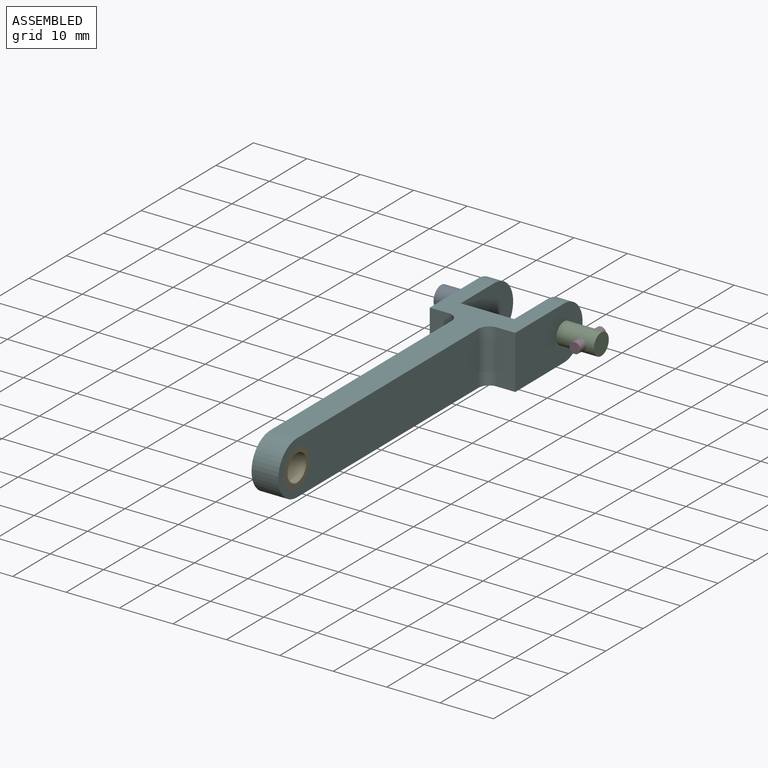
[diagram: assembled view]
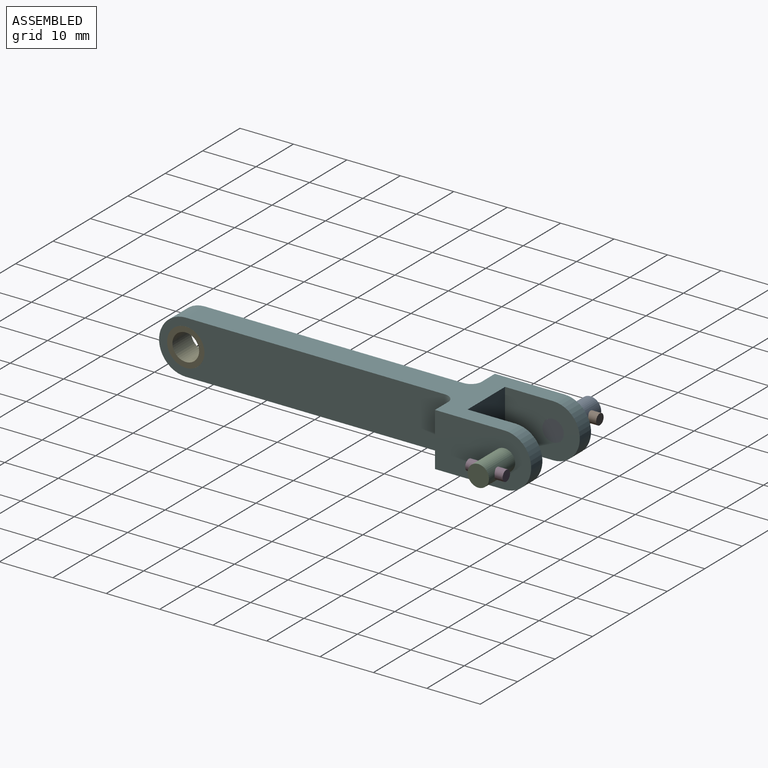
[diagram: assembled view, second angle]
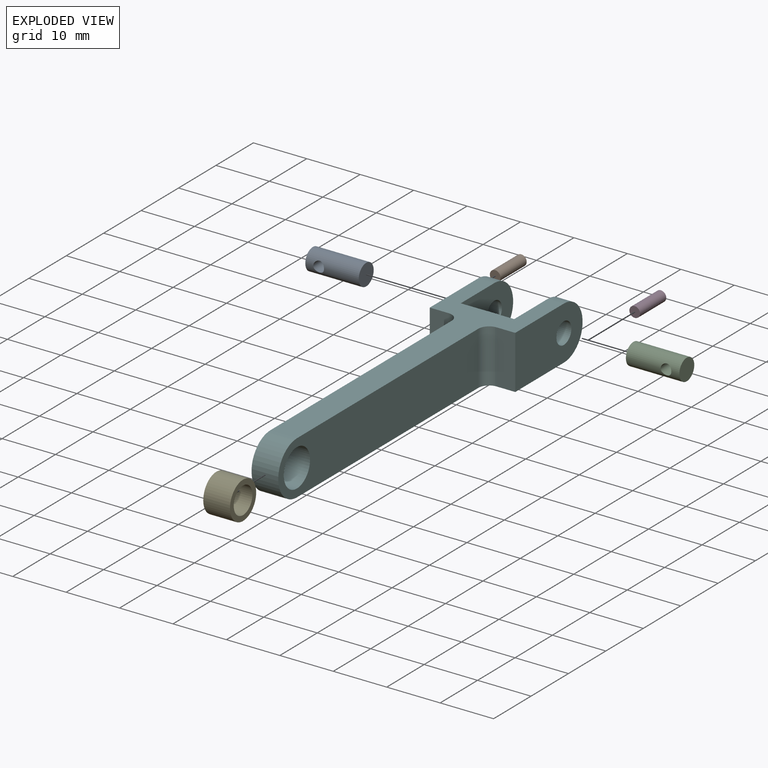
[diagram: exploded view]
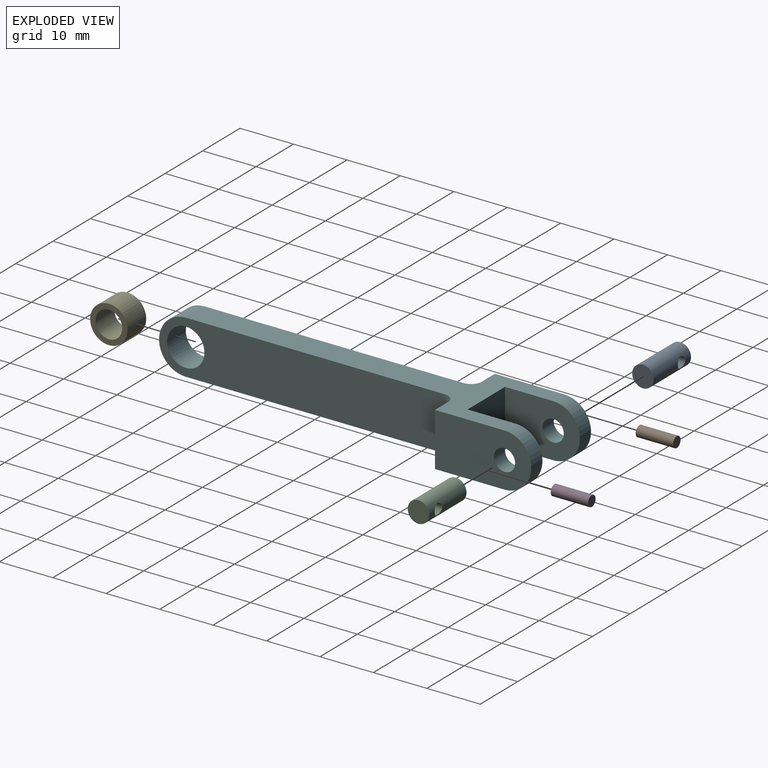
[diagram: exploded view, second angle]
ASSEMBLY  parts=6 mates=5
PART A: 4 faces, bbox 10x4x4 mm
  f0: cylinder r=2mm len=10mm, axis (1,0,0), area 119.2mm2, adj f1,f2,f3
  f1: plane 4x4mm, normal (-1,0,0), area 12.6mm2, adj f0
  f2: plane 4x4mm, normal (1,0,0), area 12.6mm2, adj f0
  f3: cylinder r=1mm len=4mm, axis (0,-1,0), area 23.5mm2, adj f0
PART B: 3 faces, bbox 2x7x2 mm
  f0: cylinder r=1mm len=7mm, axis (0,1,0), area 44mm2, adj f1,f2
  f1: plane 2x2mm, normal (0,-1,0), area 3.1mm2, adj f0
  f2: plane 2x2mm, normal (0,1,0), area 3.1mm2, adj f0
PART C: same geometry as A
PART D: same geometry as B
PART E: 4 faces, bbox 5x7x7 mm
  f0: cylinder r=2.5mm len=5mm, axis (1,0,0), area 78.5mm2, adj f2,f3
  f1: cylinder r=3.5mm len=7mm, axis (1,0,0), area 110mm2, adj f2,f3
  f2: plane 7x7mm, normal (-1,0,0), area 18.8mm2, adj f0,f1
  f3: plane 7x7mm, normal (1,0,0), area 18.8mm2, adj f0,f1
PART F: 19 faces, bbox 16x73.5x10 mm
  f0: cylinder r=5mm len=10mm, axis (-1,0,0), area 47.1mm2, adj f2,f4,f10,f15
  f1: cylinder r=5mm len=10mm, axis (-1,0,0), area 47.1mm2, adj f2,f4,f7,f9
  f2: plane 63.5x16mm, normal (0,0,-1), area 372.2mm2, adj f0,f1,f3,f5,f6,f7,f8,f9
  f3: cylinder r=5mm len=10mm, axis (-1,0,0), area 78.5mm2, adj f2,f4,f5,f14
  f4: plane 63.5x16mm, normal (0,0,1), area 372.2mm2, adj f0,f1,f3,f5,f6,f7,f8,f9
  f5: plane 53.5x10mm, normal (-1,0,0), area 485.8mm2, adj f2,f3,f4,f6,f18
  f6: cylinder r=2mm len=10mm, axis (0,0,-1), area 31.4mm2, adj f2,f4,f5,f8
  f7: plane 18x10mm, normal (-1,0,0), area 156.7mm2, adj f1,f2,f4,f8,f16
  f8: plane 10x3.5mm, normal (0,-1,0), area 35mm2, adj f2,f4,f6,f7
  f9: plane 14x10mm, normal (1,0,0), area 116.7mm2, adj f1,f2,f4,f11,f16
  f10: plane 14x10mm, normal (-1,0,0), area 116.7mm2, adj f0,f2,f4,f11,f17
  f11: plane 10x10mm, normal (0,1,0), area 100mm2, adj f2,f4,f9,f10
  f12: cylinder r=2mm len=10mm, axis (0,0,-1), area 31.4mm2, adj f2,f4,f13,f14
  f13: plane 10x3.5mm, normal (0,-1,0), area 35mm2, adj f2,f4,f12,f15
  f14: plane 53.5x10mm, normal (1,0,0), area 485.8mm2, adj f2,f3,f4,f12,f18
  f15: plane 18x10mm, normal (1,0,0), area 156.7mm2, adj f0,f2,f4,f13,f17
  f16: cylinder r=2mm len=4mm, axis (-1,0,0), area 37.7mm2, adj f7,f9
  f17: cylinder r=2mm len=4mm, axis (-1,0,0), area 37.7mm2, adj f10,f15
  f18: cylinder r=3.5mm len=7mm, axis (-1,0,0), area 110mm2, adj f5,f14
PLACE A t=(-1.77,-23.62,13.73)mm
PLACE B t=(-1.77,-23.62,13.73)mm
PLACE C rot(axis=(0,1,0),180deg) t=(-1.77,-23.62,13.73)mm
PLACE D t=(23.23,-23.62,13.73)mm
PLACE E rot(axis=(0,1,0),180deg) t=(-1.77,-23.62,13.73)mm
PLACE F t=(-1.77,-23.62,13.73)mm
MATE fastened D.f0 <-> C.f3  axis (0,1,0) through (10.73,39.88,13.73)mm
MATE fastened B.f0 <-> A.f3  axis (0,1,0) through (-14.27,39.88,13.73)mm
MATE fastened E.f0 <-> F.f18  axis (1,0,0) through (0.73,-23.62,13.73)mm
MATE fastened C.f0 <-> F.f16  axis (-1,0,0) through (3.23,39.88,13.73)mm
MATE fastened A.f0 <-> F.f16  axis (1,0,0) through (-6.77,39.88,13.73)mm
